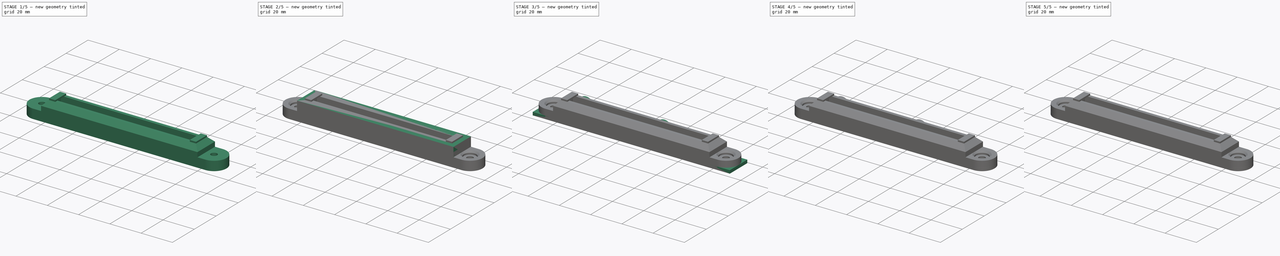
[diagram: build sequence overview — one tinted view per stage of 5, left to right]
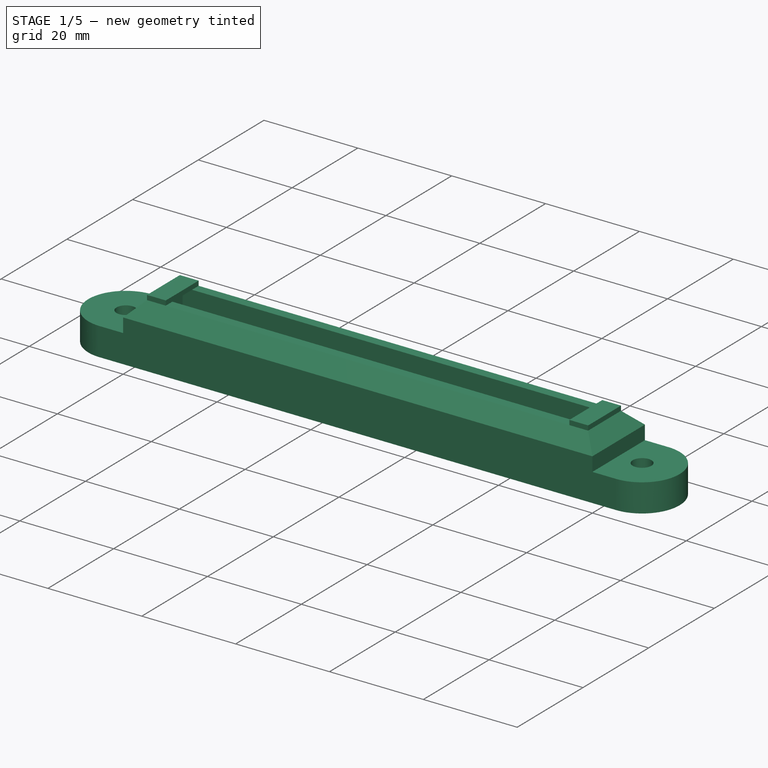
[diagram: stage 1 of 5 — iso view after this stage's code; geometry added in this stage tinted green]
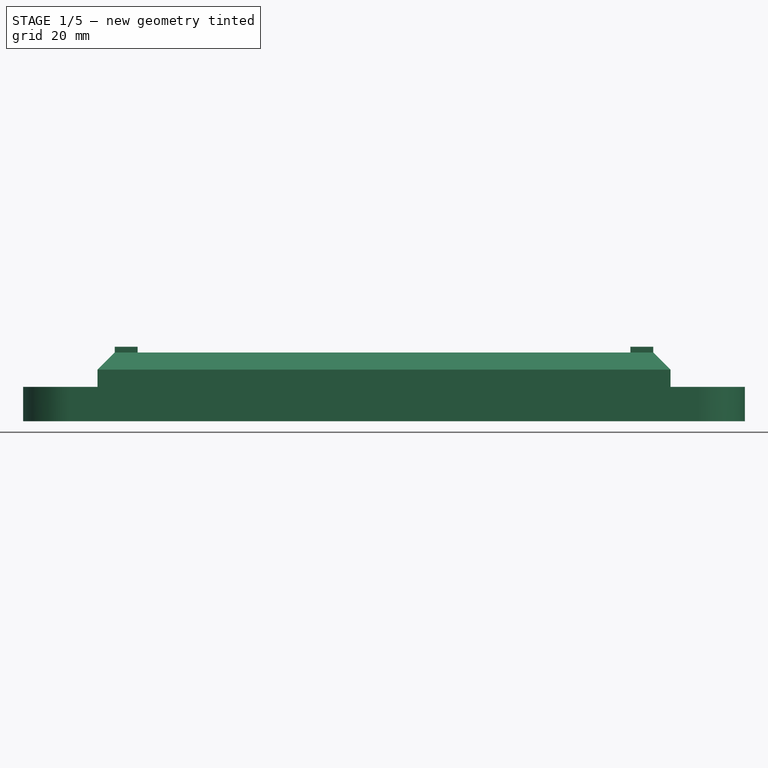
[diagram: stage 1 of 5 — front view after this stage's code; geometry added in this stage tinted green]
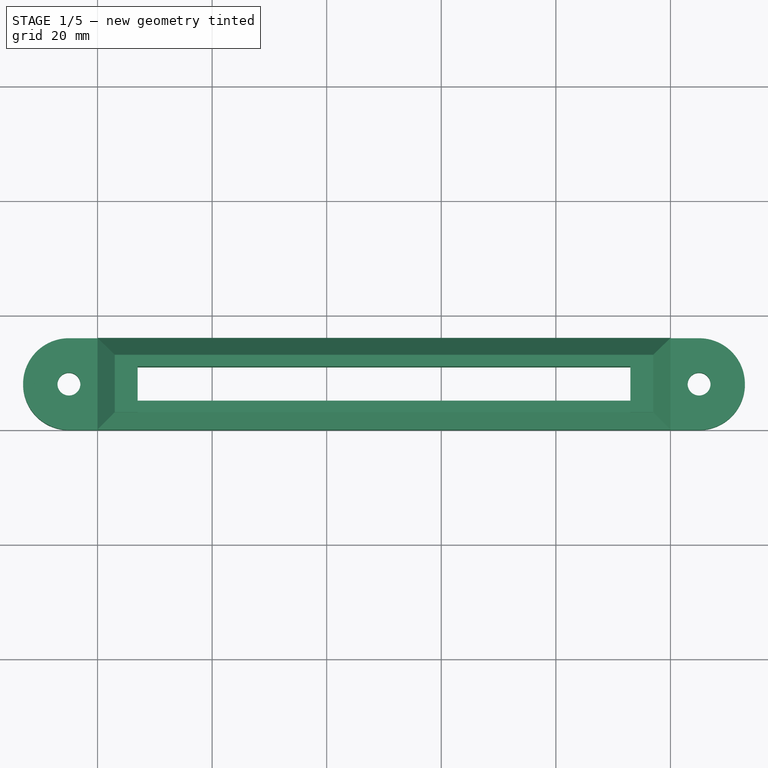
[diagram: stage 1 of 5 — top view after this stage's code; geometry added in this stage tinted green]
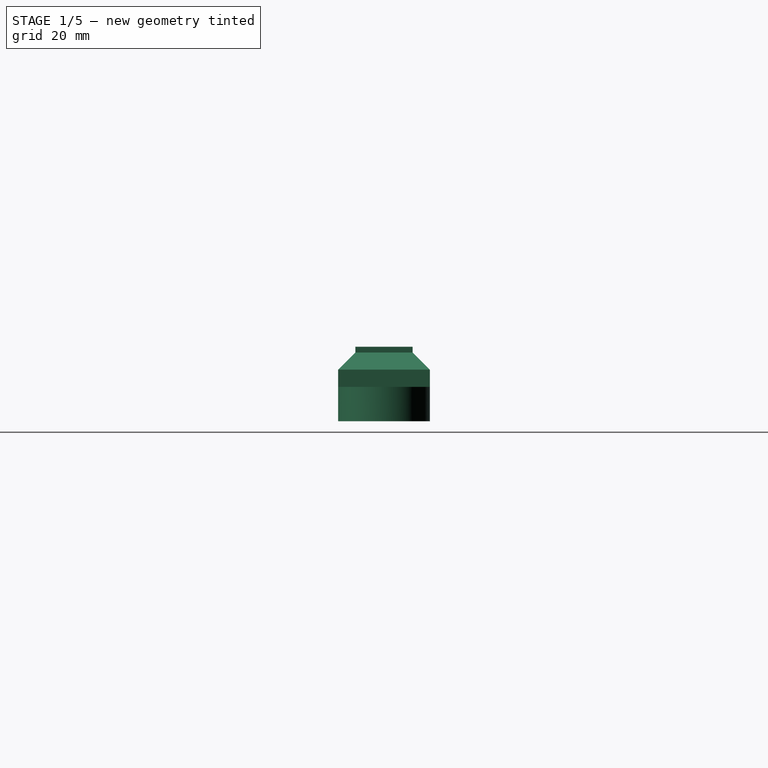
[diagram: stage 1 of 5 — right view after this stage's code; geometry added in this stage tinted green]
FCSTD DOCUMENT  (FreeCAD 0.16R5861 (Git))
Label: wiper_mount_v1.1
License: CC-BY 3.0
LicenseURL: http://creativecommons.org/licenses/by/3.0/
objects: Sketcher::SketchObject×14, PartDesign::Pad×7, PartDesign::Pocket×7, PartDesign::Chamfer×3, PartDesign::Fillet×2, Part::Feature×2, PartDesign::LinearPattern×1
note: 50 computed .brp shape members not serialized (recipe doc carries the construction recipe); baked Part::Feature solids carry a one-line shape summary decoded from their .brp

FEATURE [Part::Feature] Pocket004001  label="Pocket005"
  shape: bbox 126 x 16 x 13 mm, 37 faces (baked)
FEATURE [Sketcher::SketchObject] Sketch011
  ExternalGeometry = -> [Pocket004001]
  Placement = pos=(0,0,2) rot=(0,0,1;0rad)
  Support = -> Pocket004001 [Face33]
  sketch-geometry (8):
    g0: LineSegment StartX=0 StartY=16 StartZ=0 EndX=-13 EndY=16 EndZ=0
    g1: LineSegment StartX=-13 StartY=16 StartZ=0 EndX=-13 EndY=0 EndZ=0
    g2: LineSegment StartX=-13 StartY=0 StartZ=0 EndX=0 EndY=0 EndZ=0
    g3: LineSegment StartX=0 StartY=0 StartZ=0 EndX=0 EndY=16 EndZ=0
    g4: LineSegment StartX=100 StartY=16 StartZ=0 EndX=113 EndY=16 EndZ=0
    g5: LineSegment StartX=113 StartY=16 StartZ=0 EndX=113 EndY=0 EndZ=0
    g6: LineSegment StartX=113 StartY=0 StartZ=0 EndX=100 EndY=0 EndZ=0
    g7: LineSegment StartX=100 StartY=0 StartZ=0 EndX=100 EndY=16 EndZ=0
  constraints (22):
    c: Coincident(g0,g1)
    c: Coincident(g1,g2)
    c: Coincident(g2,g3)
    c: Coincident(g3,g0)
    c: Horizontal(g0)
    c: Horizontal(g2)
    c: Vertical(g1)
    c: Vertical(g3)
    c: Coincident(g0,g-9)
    c: PointOnObject(g1,g-1)
    c: PointOnObject(g-5,g1)
    c: Coincident(g4,g5)
    c: Coincident(g5,g6)
    c: Coincident(g6,g7)
    c: Coincident(g7,g4)
    c: Horizontal(g4)
    c: Horizontal(g6)
    c: Vertical(g5)
    c: Vertical(g7)
    c: Coincident(g4,g-8)
    c: PointOnObject(g5,g-1)
    c: PointOnObject(g-6,g5)
FEATURE [PartDesign::Pad] Pad006
  Length = 4
  Length2 = 100
  Sketch = -> Sketch011
  Type = 0
FEATURE [PartDesign::Fillet] Fillet001
  Base = -> Pad006 [Edge71,Edge84,Edge68,Edge91]
  Radius = 7.99
FEATURE [Sketcher::SketchObject] Sketch012
  ExternalGeometry = -> [Fillet001]
  Placement = pos=(0,0,0) rot=(1,0,0;3.14159rad)
  Support = -> Fillet001 [Face1]
  sketch-geometry (2):
    g0: Circle CenterX=-5 CenterY=-8 CenterZ=0 NormalX=0 NormalY=0 NormalZ=1 Radius=2
    g1: Circle CenterX=105 CenterY=-8 CenterZ=0 NormalX=0 NormalY=0 NormalZ=1 Radius=2
  constraints (4):
    c: Coincident(g0,g-4)
    c: Coincident(g1,g-3)
    c: Equal(g1,g0)
    c: Radius(g0) = 2
FEATURE [PartDesign::Pocket] Pocket004002
  Length = 5
  Sketch = -> Sketch012
  Type = 1
FEATURE [Part::Feature] Chamfer001001  label="Chamfer002"
  shape: bbox 126 x 16 x 13.02 mm, 47 faces (baked)
FEATURE [PartDesign::Chamfer] Chamfer001002
  Base = -> Chamfer001001 [Edge84,Edge6]
  Size = 2
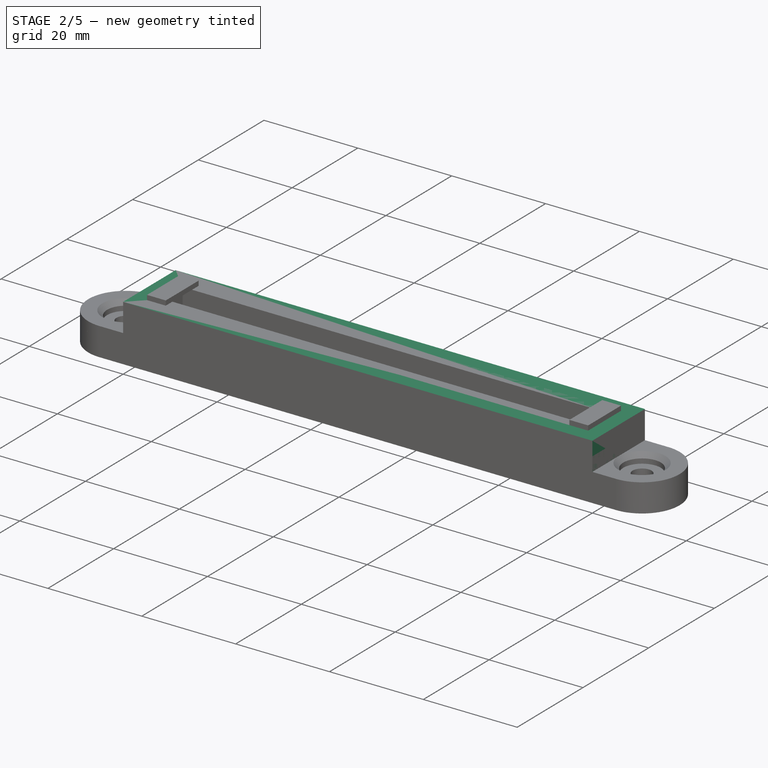
[diagram: stage 2 of 5 — iso view after this stage's code; geometry added in this stage tinted green]
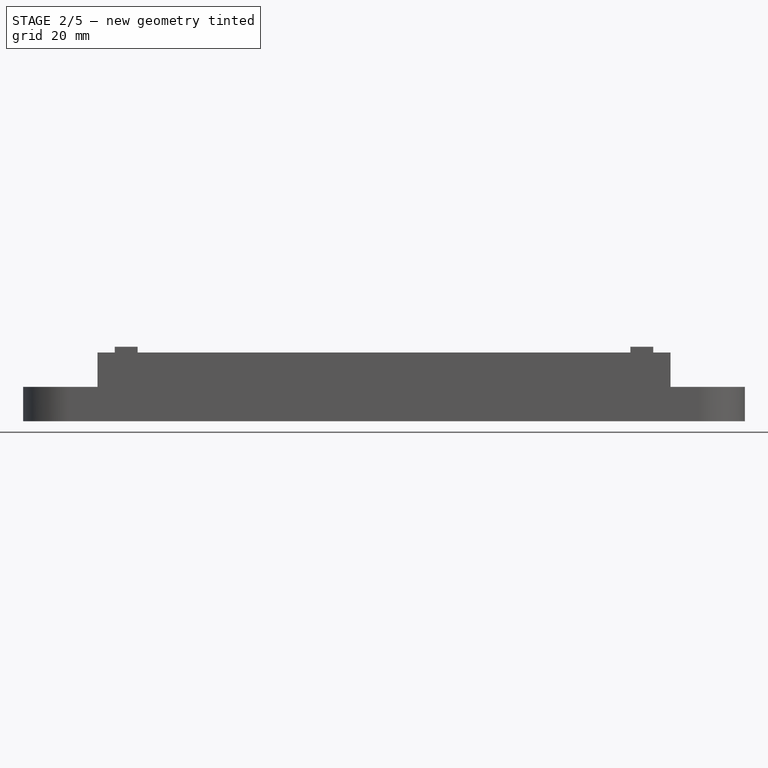
[diagram: stage 2 of 5 — front view after this stage's code; geometry added in this stage tinted green]
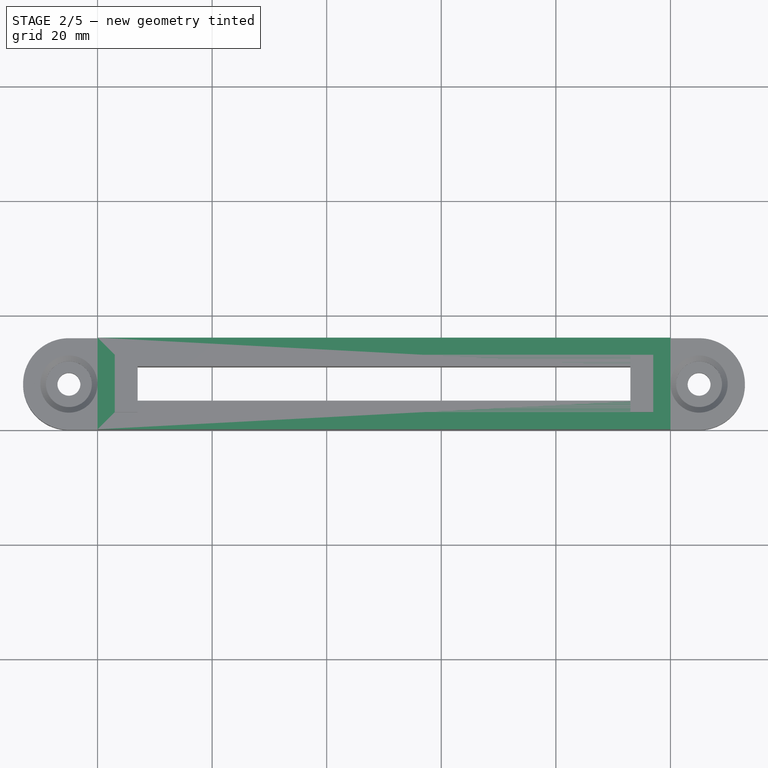
[diagram: stage 2 of 5 — top view after this stage's code; geometry added in this stage tinted green]
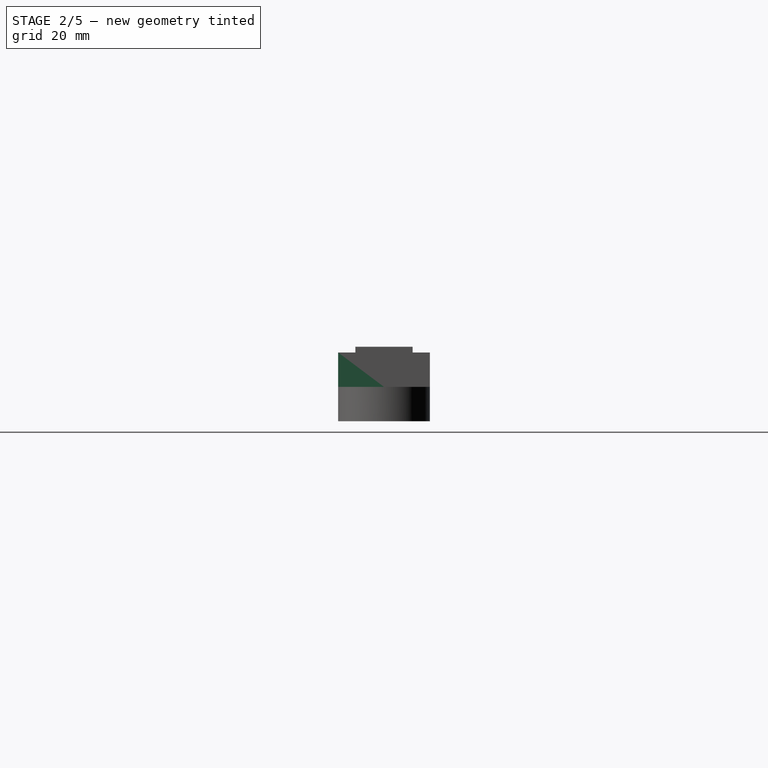
[diagram: stage 2 of 5 — right view after this stage's code; geometry added in this stage tinted green]
FEATURE [Sketcher::SketchObject] Sketch
  sketch-geometry (4):
    g0: LineSegment StartX=0 StartY=0 StartZ=0 EndX=100 EndY=0 EndZ=0
    g1: LineSegment StartX=100 StartY=0 StartZ=0 EndX=100 EndY=16 EndZ=0
    g2: LineSegment StartX=100 StartY=16 StartZ=0 EndX=0 EndY=16 EndZ=0
    g3: LineSegment StartX=0 StartY=16 StartZ=0 EndX=0 EndY=0 EndZ=0
  constraints (11):
    c: Coincident(g0,g1)
    c: Coincident(g1,g2)
    c: Coincident(g2,g3)
    c: Coincident(g3,g0)
    c: Horizontal(g0)
    c: Horizontal(g2)
    c: Vertical(g1)
    c: Vertical(g3)
    c: Coincident(g0,g-1)
    c: DistanceY(g3) = -16
    c: DistanceX(g2) = -100
FEATURE [PartDesign::Pad] Pad
  Length = 12
  Length2 = 100
  Sketch = -> Sketch
  Type = 0
FEATURE [Sketcher::SketchObject] Sketch001
  Placement = pos=(0,0,12) rot=(0,0,1;0rad)
  Support = -> Pad [Face6]
  sketch-geometry (4):
    g0: LineSegment StartX=5 StartY=5 StartZ=0 EndX=95 EndY=5 EndZ=0
    g1: LineSegment StartX=95 StartY=5 StartZ=0 EndX=95 EndY=11 EndZ=0
    g2: LineSegment StartX=95 StartY=11 StartZ=0 EndX=5 EndY=11 EndZ=0
    g3: LineSegment StartX=5 StartY=11 StartZ=0 EndX=5 EndY=5 EndZ=0
  constraints (12):
    c: Coincident(g0,g1)
    c: Coincident(g1,g2)
    c: Coincident(g2,g3)
    c: Coincident(g3,g0)
    c: Horizontal(g0)
    c: Horizontal(g2)
    c: Vertical(g1)
    c: Vertical(g3)
    c: DistanceY(g3) = -6
    c: DistanceX(g0) = 5
    c: DistanceY(g0) = 5
    c: DistanceX(g2) = -90
FEATURE [PartDesign::Pocket] Pocket
  Length = 5
  Sketch = -> Sketch001
  Type = 1
FEATURE [Sketcher::SketchObject] Sketch013
  ExternalGeometry = -> [Pocket004002]
  Placement = pos=(0,0,6) rot=(0,0,1;0rad)
  Support = -> Pocket004002 [Face35]
  sketch-geometry (2):
    g0: Circle CenterX=-5 CenterY=8 CenterZ=0 NormalX=0 NormalY=0 NormalZ=1 Radius=4
    g1: Circle CenterX=105 CenterY=8 CenterZ=0 NormalX=0 NormalY=0 NormalZ=1 Radius=4
  constraints (4):
    c: Coincident(g0,g-3)
    c: Coincident(g1,g-4)
    c: Equal(g1,g0)
    c: Radius(g0) = 4
FEATURE [PartDesign::Pocket] Pocket004003
  Length = 2
  Sketch = -> Sketch013
  Type = 0
FEATURE [PartDesign::Chamfer] Chamfer001
  Base = -> Pocket004003 [Edge100,Edge99]
  Size = 0.99
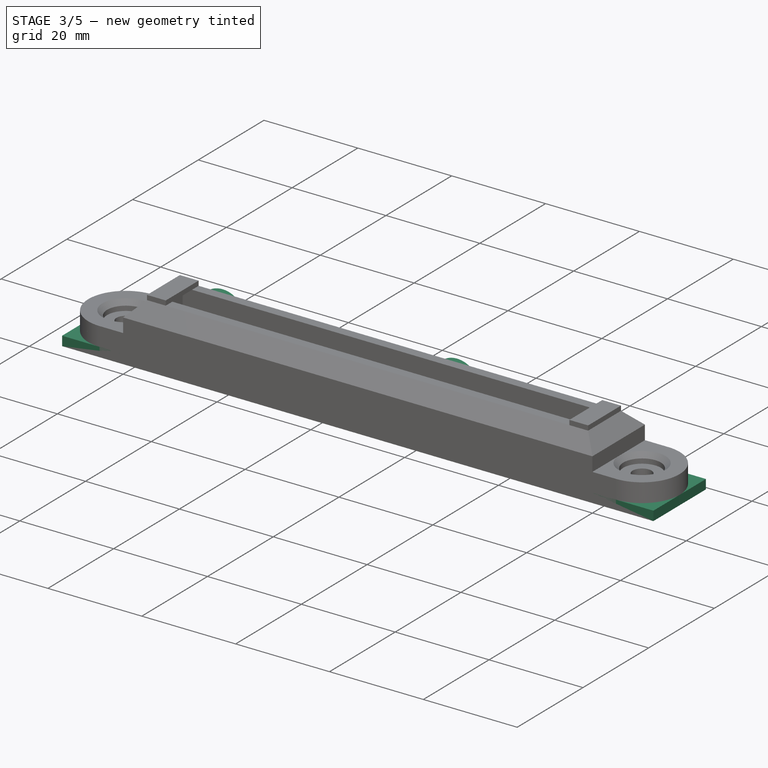
[diagram: stage 3 of 5 — iso view after this stage's code; geometry added in this stage tinted green]
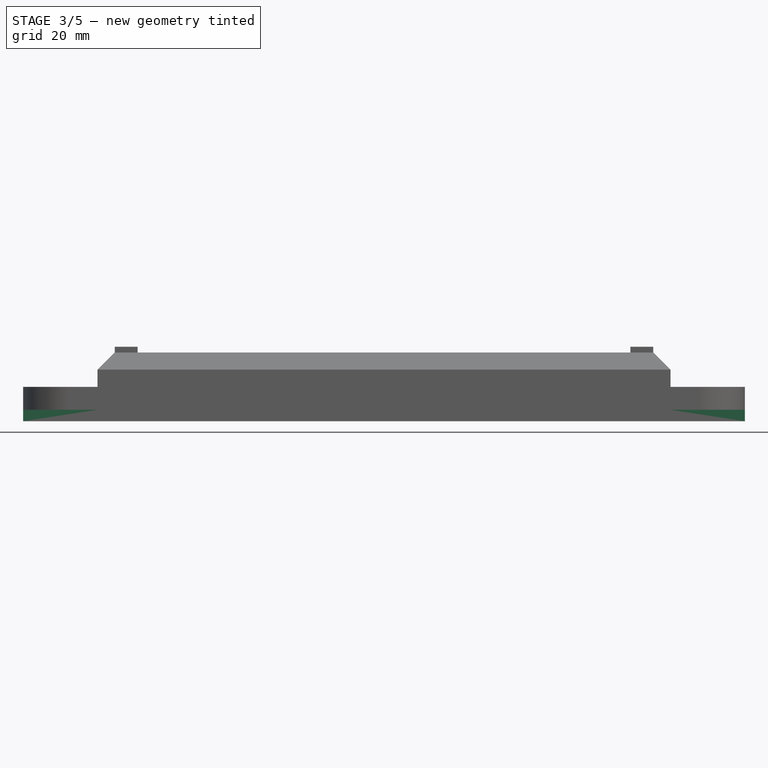
[diagram: stage 3 of 5 — front view after this stage's code; geometry added in this stage tinted green]
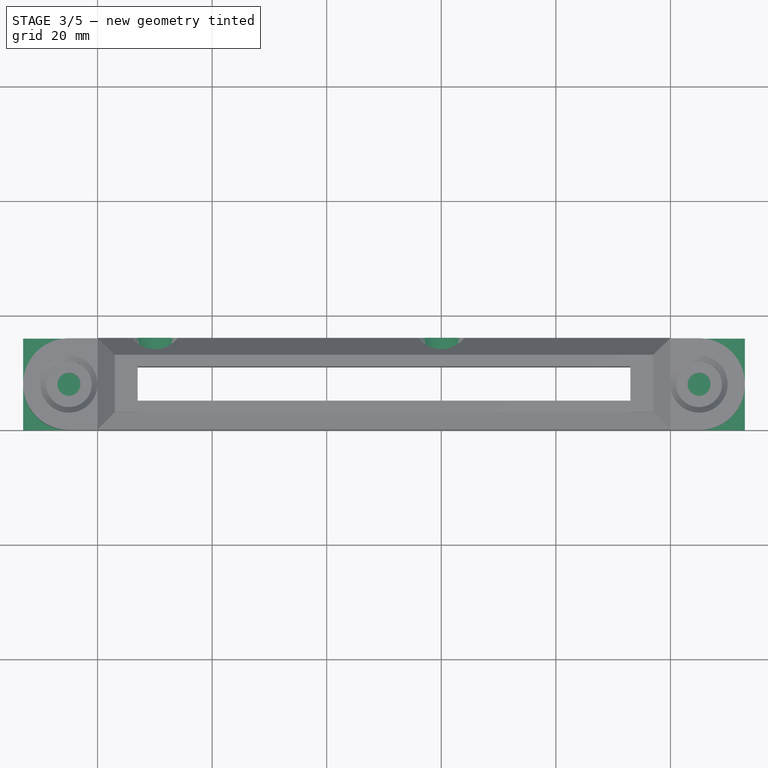
[diagram: stage 3 of 5 — top view after this stage's code; geometry added in this stage tinted green]
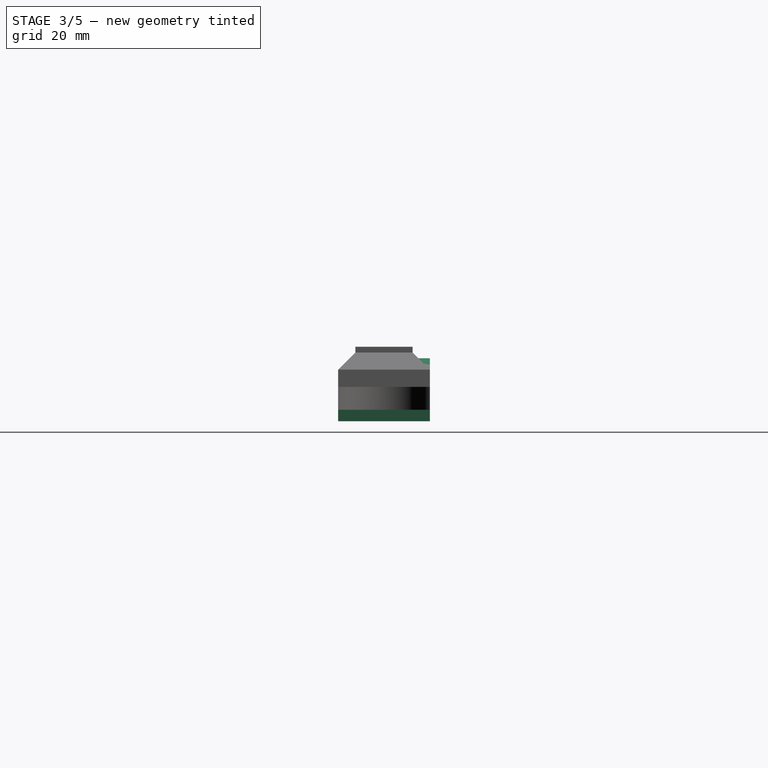
[diagram: stage 3 of 5 — right view after this stage's code; geometry added in this stage tinted green]
FEATURE [Sketcher::SketchObject] Sketch002
  Placement = pos=(0,16,0) rot=(0,0.707107,0.707107;3.14159rad)
  Support = -> Pocket [Face6]
  sketch-geometry (2):
    g0: Circle CenterX=-60 CenterY=6 CenterZ=0 NormalX=0 NormalY=0 NormalZ=1 Radius=2.65
    g1: Circle CenterX=-10 CenterY=6 CenterZ=0 NormalX=0 NormalY=0 NormalZ=1 Radius=2.65
  constraints (6):
    c: DistanceX(g1) = -10
    c: DistanceY(g1) = 6
    c: DistanceX(g0) = -60
    c: DistanceY(g0) = 6
    c: Equal(g0,g1)
    c: Radius(g0) = 2.65
FEATURE [PartDesign::Pocket] Pocket001
  Length = 5
  Sketch = -> Sketch002
  Type = 0
FEATURE [PartDesign::Chamfer] Chamfer
  Base = -> Pocket001 [Edge16,Edge10,Edge4,Edge7]
  Size = 3
FEATURE [Sketcher::SketchObject] Sketch003
  ExternalGeometry = -> [Chamfer]
  Placement = pos=(0,16,0) rot=(0,0.707107,0.707107;3.14159rad)
  Support = -> Chamfer [Face6]
  sketch-geometry (4):
    g0: Circle CenterX=-60 CenterY=6 CenterZ=0 NormalX=0 NormalY=0 NormalZ=1 Radius=2.6
    g1: Circle CenterX=-10 CenterY=6 CenterZ=0 NormalX=0 NormalY=0 NormalZ=1 Radius=2.6
    g2: Circle CenterX=-60 CenterY=6 CenterZ=0 NormalX=0 NormalY=0 NormalZ=1 Radius=5
    g3: Circle CenterX=-10 CenterY=6 CenterZ=0 NormalX=0 NormalY=0 NormalZ=1 Radius=5
  constraints (8):
    c: Coincident(g0,g-3)
    c: Coincident(g1,g-4)
    c: Coincident(g2,g0)
    c: Coincident(g3,g1)
    c: Equal(g1,g0)
    c: Radius(g0) = 2.6
    c: Equal(g2,g3)
    c: Radius(g2) = 5
FEATURE [PartDesign::Pad] Pad001
  Length = 3
  Length2 = 100
  Reversed = true
  Sketch = -> Sketch003
  Type = 0
FEATURE [Sketcher::SketchObject] Sketch004
  ExternalGeometry = -> [Pad001]
  Placement = pos=(0,0,0) rot=(1,0,0;3.14159rad)
  Support = -> Pad001 [Face4]
  sketch-geometry (8):
    g0: LineSegment StartX=2 StartY=0 StartZ=0 EndX=-13 EndY=0 EndZ=0
    g1: LineSegment StartX=-13 StartY=0 StartZ=0 EndX=-13 EndY=-16 EndZ=0
    g2: LineSegment StartX=-13 StartY=-16 StartZ=0 EndX=2 EndY=-16 EndZ=0
    g3: LineSegment StartX=2 StartY=-16 StartZ=0 EndX=2 EndY=0 EndZ=0
    g4: LineSegment StartX=98 StartY=0 StartZ=0 EndX=113 EndY=0 EndZ=0
    g5: LineSegment StartX=113 StartY=0 StartZ=0 EndX=113 EndY=-16 EndZ=0
    g6: LineSegment StartX=113 StartY=-16 StartZ=0 EndX=98 EndY=-16 EndZ=0
    g7: LineSegment StartX=98 StartY=-16 StartZ=0 EndX=98 EndY=0 EndZ=0
  constraints (24):
    c: Coincident(g0,g1)
    c: Coincident(g1,g2)
    c: Coincident(g2,g3)
    c: Coincident(g3,g0)
    c: Horizontal(g0)
    c: Horizontal(g2)
    c: Vertical(g1)
    c: Vertical(g3)
    c: PointOnObject(g0,g-1)
    c: Coincident(g4,g5)
    c: Coincident(g5,g6)
    c: Coincident(g6,g7)
    c: Coincident(g7,g4)
    c: Horizontal(g4)
    c: Horizontal(g6)
    c: Vertical(g5)
    c: Vertical(g7)
    c: Equal(g0,g4)
    c: Equal(g3,g7)
    c: DistanceX(g-1,g0) = 2
    c: PointOnObject(g-3,g4)
    c: DistanceX(g4,g-3) = 2
    c: DistanceY(g3) = 16
    c: DistanceX(g0) = -15
FEATURE [PartDesign::Pad] Pad002
  Length = 2
  Length2 = 100
  Reversed = true
  Sketch = -> Sketch004
  Type = 0
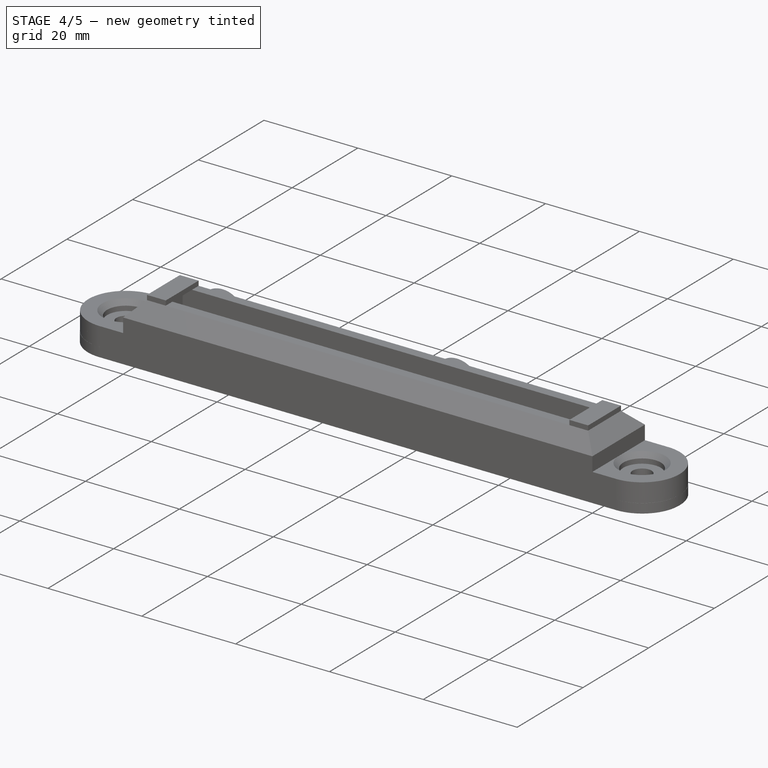
[diagram: stage 4 of 5 — iso view after this stage's code; geometry added in this stage tinted green]
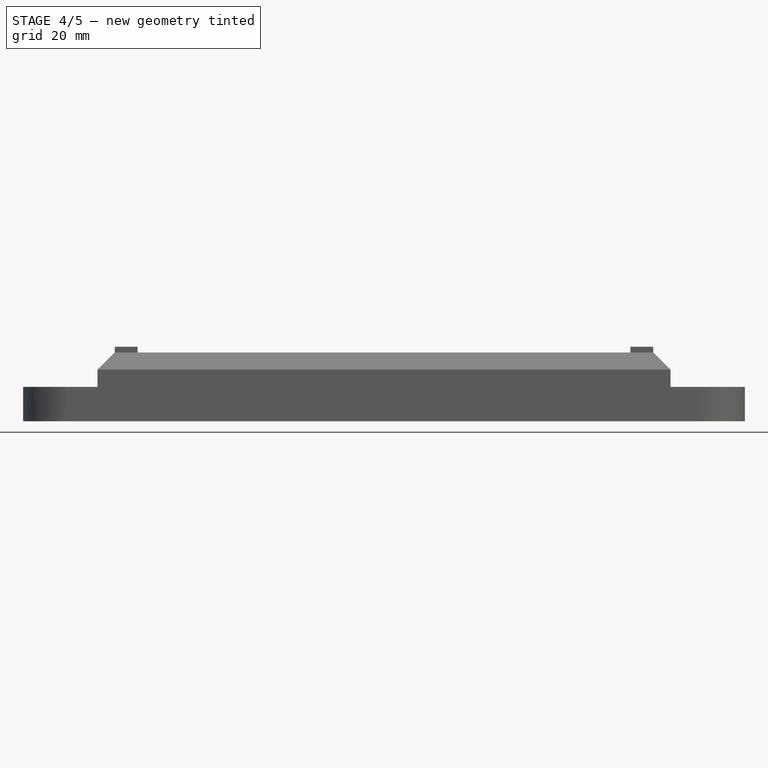
[diagram: stage 4 of 5 — front view after this stage's code; geometry added in this stage tinted green]
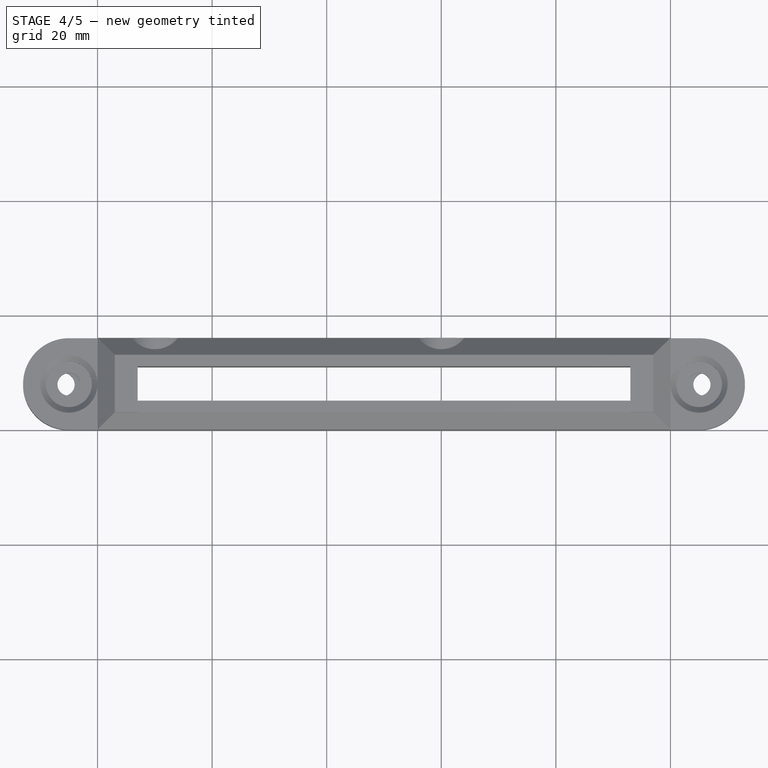
[diagram: stage 4 of 5 — top view after this stage's code; geometry added in this stage tinted green]
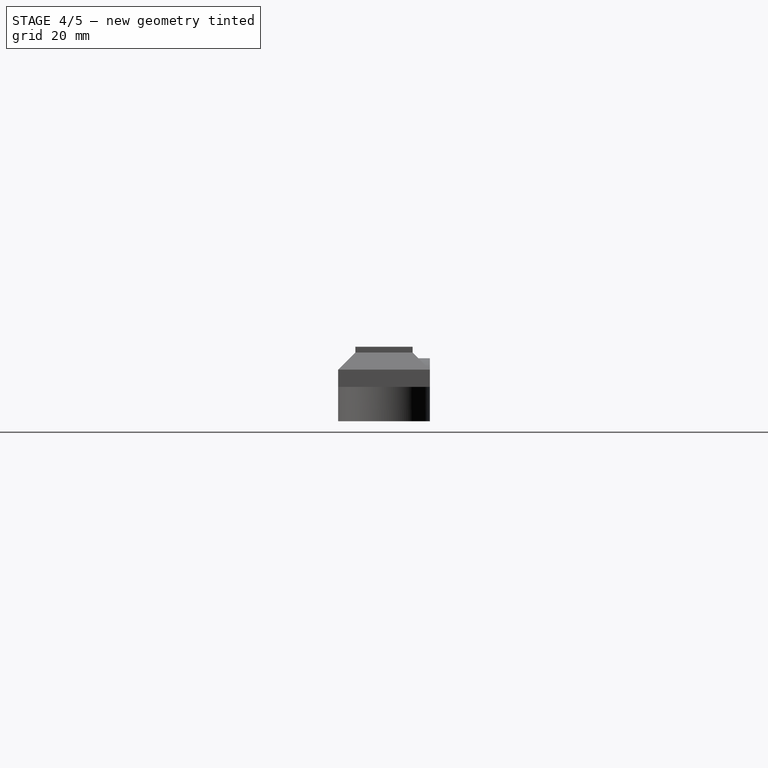
[diagram: stage 4 of 5 — right view after this stage's code; geometry added in this stage tinted green]
FEATURE [PartDesign::Fillet] Fillet
  Base = -> Pad002 [Edge65,Edge85,Edge69,Edge90]
  Radius = 7.9
FEATURE [Sketcher::SketchObject] Sketch005
  Placement = pos=(0,0,2) rot=(0,0,1;0rad)
  Support = -> Fillet [Face31]
  sketch-geometry (2):
    g0: Circle CenterX=-6 CenterY=8 CenterZ=0 NormalX=0 NormalY=0 NormalZ=1 Radius=2
    g1: Circle CenterX=106 CenterY=8 CenterZ=0 NormalX=0 NormalY=0 NormalZ=1 Radius=2
  constraints (6):
    c: Equal(g1,g0)
    c: DistanceX(g0) = -6
    c: DistanceY(g0) = 8
    c: DistanceX(g1) = 106
    c: DistanceY(g1) = 8
    c: Radius(g0) = 2
FEATURE [PartDesign::Pocket] Pocket002
  Length = 5
  Sketch = -> Sketch005
  Type = 0
FEATURE [Sketcher::SketchObject] Sketch006
  ExternalGeometry = -> [Pocket002]
  Placement = pos=(0,0,12) rot=(0,0,1;0rad)
  Support = -> Pocket002 [Face28]
  sketch-geometry (4):
    g0: LineSegment StartX=3 StartY=3 StartZ=0 EndX=7 EndY=3 EndZ=0
    g1: LineSegment StartX=7 StartY=3 StartZ=0 EndX=7 EndY=13 EndZ=0
    g2: LineSegment StartX=7 StartY=13 StartZ=0 EndX=3 EndY=13 EndZ=0
    g3: LineSegment StartX=3 StartY=13 StartZ=0 EndX=3 EndY=3 EndZ=0
  constraints (11):
    c: Coincident(g0,g1)
    c: Coincident(g1,g2)
    c: Coincident(g2,g3)
    c: Coincident(g3,g0)
    c: Horizontal(g0)
    c: Horizontal(g2)
    c: Vertical(g1)
    c: Vertical(g3)
    c: Coincident(g2,g-3)
    c: Coincident(g0,g-3)
    c: DistanceX(g-1,g0) = 7
FEATURE [PartDesign::Pad] Pad003
  Length = 1
  Length2 = 100
  Sketch = -> Sketch006
  Type = 0
FEATURE [PartDesign::LinearPattern] LinearPattern
  Direction = -> Sketch006 [H_Axis]
  Length = 90
  Occurrences = 2
  Originals = -> [Pad003]
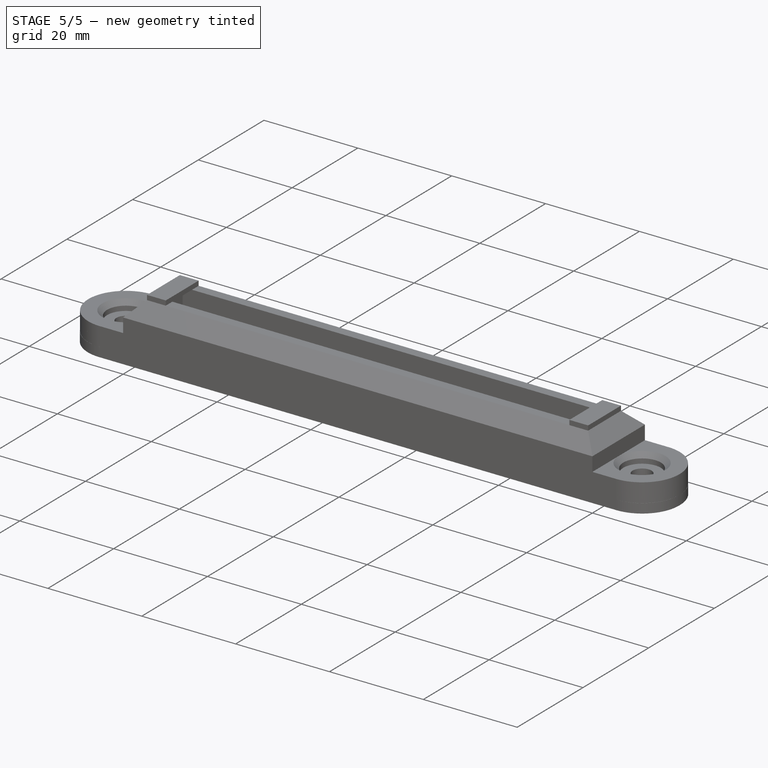
[diagram: stage 5 of 5 — iso view after this stage's code; geometry added in this stage tinted green]
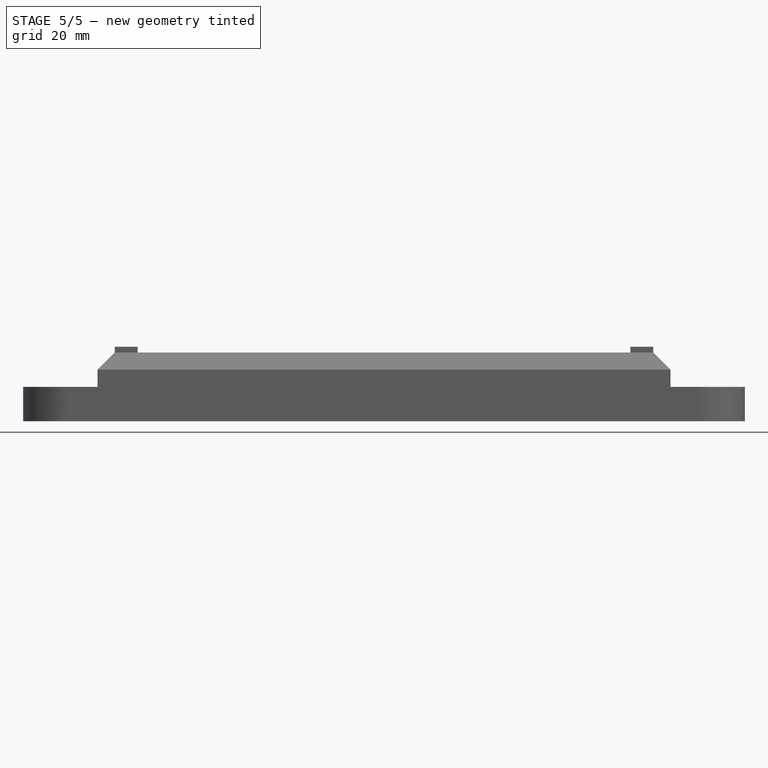
[diagram: stage 5 of 5 — front view after this stage's code; geometry added in this stage tinted green]
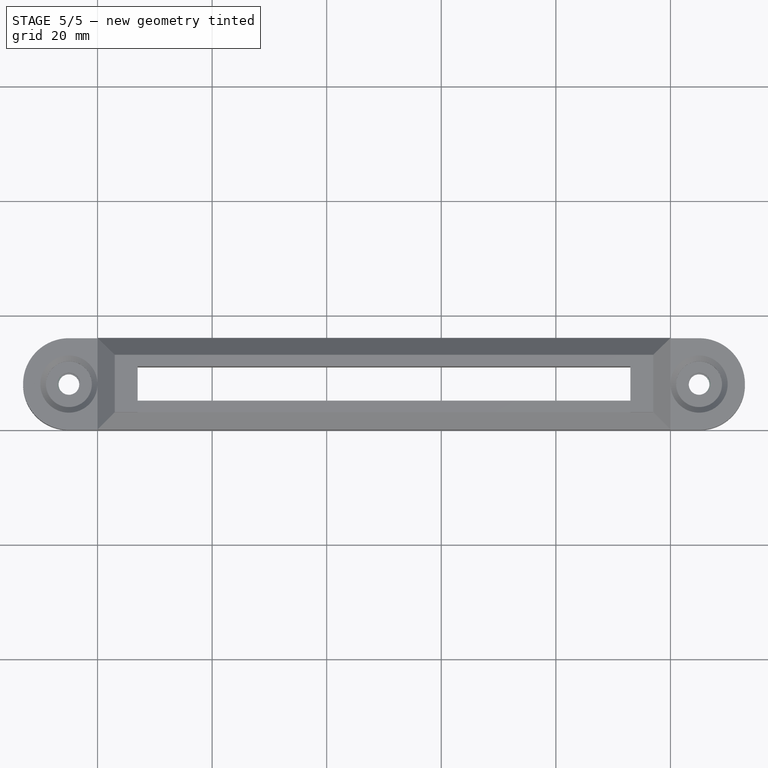
[diagram: stage 5 of 5 — top view after this stage's code; geometry added in this stage tinted green]
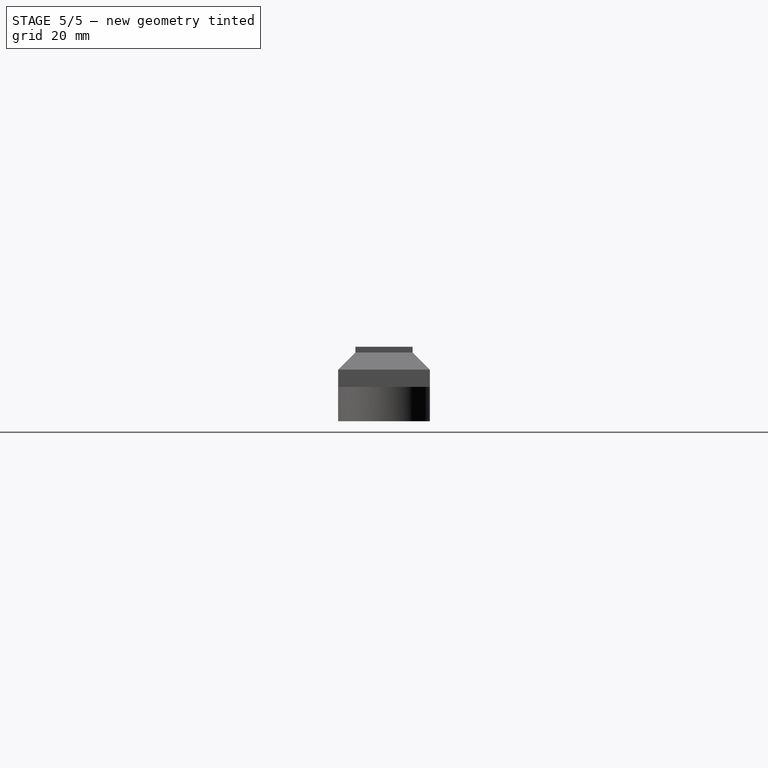
[diagram: stage 5 of 5 — right view after this stage's code; geometry added in this stage tinted green]
FEATURE [Sketcher::SketchObject] Sketch007
  ExternalGeometry = -> [LinearPattern]
  Placement = pos=(0,16,0) rot=(0,0.707107,0.707107;3.14159rad)
  Support = -> LinearPattern [Face19]
  sketch-geometry (2):
    g0: Circle CenterX=-60 CenterY=6 CenterZ=0 NormalX=0 NormalY=0 NormalZ=1 Radius=2.9
    g1: Circle CenterX=-10 CenterY=6 CenterZ=0 NormalX=0 NormalY=0 NormalZ=1 Radius=2.9
  constraints (4):
    c: Coincident(g1,g-4)
    c: Coincident(g0,g-3)
    c: Radius(g0) = 2.9
    c: Radius(g1) = 2.9
FEATURE [PartDesign::Pad] Pad004
  Length = 5
  Length2 = 100
  Reversed = true
  Sketch = -> Sketch007
  Type = 0
FEATURE [Sketcher::SketchObject] Sketch008
  ExternalGeometry = -> [Pad004]
  Placement = pos=(0,0,0) rot=(0.57735,-0.57735,-0.57735;2.0944rad)
  Support = -> Pad004 [Face12]
  sketch-geometry (3):
    g0: LineSegment StartX=-16 StartY=12 StartZ=0 EndX=-13 EndY=12 EndZ=0
    g1: LineSegment StartX=-16 StartY=9 StartZ=0 EndX=-13 EndY=12 EndZ=0
    g2: LineSegment StartX=-16 StartY=9 StartZ=0 EndX=-16 EndY=12 EndZ=0
  constraints (7):
    c: Coincident(g1,g0)
    c: Coincident(g2,g0)
    c: Coincident(g2,g1)
    c: Coincident(g1,g-3)
    c: Coincident(g0,g-3)
    c: DistanceY(g0,g1) = -3
    c: DistanceX(g0,g0) = 3
FEATURE [PartDesign::Pocket] Pocket003
  Length = 100
  Sketch = -> Sketch008
  Type = 0
FEATURE [Sketcher::SketchObject] Sketch009
  ExternalGeometry = -> [Pocket003]
  Placement = pos=(0,0,2) rot=(0,0,1;0rad)
  Support = -> Pocket003 [Face26]
  sketch-geometry (2):
    g0: Circle CenterX=-6 CenterY=8 CenterZ=0 NormalX=0 NormalY=0 NormalZ=1 Radius=3
    g1: Circle CenterX=106 CenterY=8 CenterZ=0 NormalX=0 NormalY=0 NormalZ=1 Radius=3
  constraints (4):
    c: Coincident(g0,g-3)
    c: Coincident(g1,g-4)
    c: Equal(g0,g1)
    c: Radius(g0) = 3
FEATURE [PartDesign::Pad] Pad005
  Length = 2
  Length2 = 100
  Reversed = true
  Sketch = -> Sketch009
  Type = 0
FEATURE [Sketcher::SketchObject] Sketch010
  Placement = pos=(0,0,2) rot=(0,0,1;0rad)
  Support = -> Pad005 [Face5]
  sketch-geometry (3):
    g0: Circle CenterX=-5 CenterY=8 CenterZ=0 NormalX=0 NormalY=0 NormalZ=1 Radius=1.8
    g1: Circle CenterX=105 CenterY=8 CenterZ=0 NormalX=0 NormalY=0 NormalZ=1 Radius=1.8
    g2: LineSegment [constr] StartX=-5 StartY=8 StartZ=0 EndX=105 EndY=8 EndZ=0
  constraints (8):
    c: Coincident(g2,g0)
    c: Coincident(g2,g1)
    c: Horizontal(g2)
    c: DistanceX(g2) = 110
    c: Equal(g0,g1)
    c: Radius(g0) = 1.8
    c: DistanceX(g-1,g0) = -5
    c: DistanceY(g-1,g0) = 8
FEATURE [PartDesign::Pocket] Pocket004
  Length = 5
  Sketch = -> Sketch010
  Type = 0
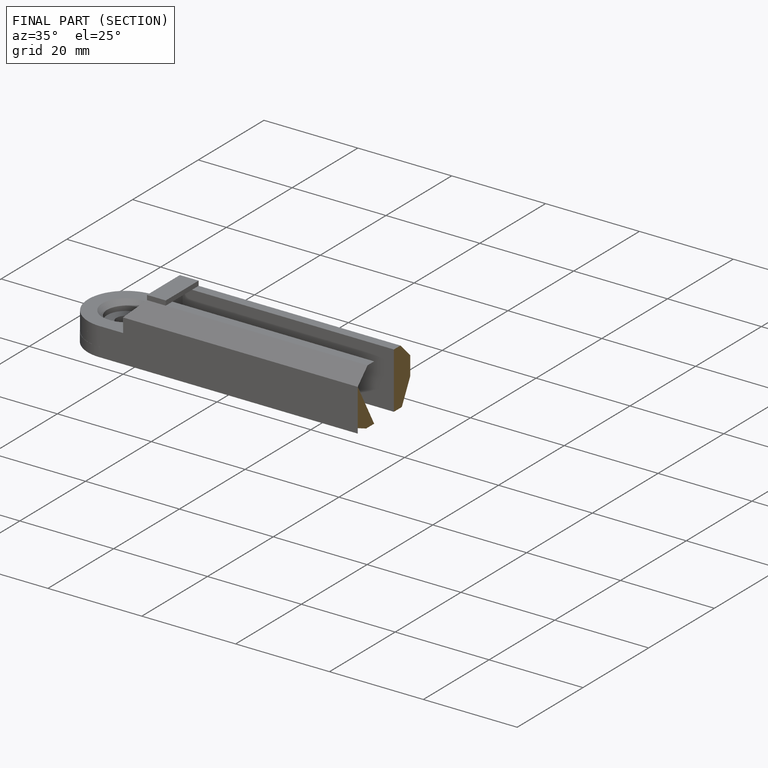
[diagram: finished part — half-section view (interior)]
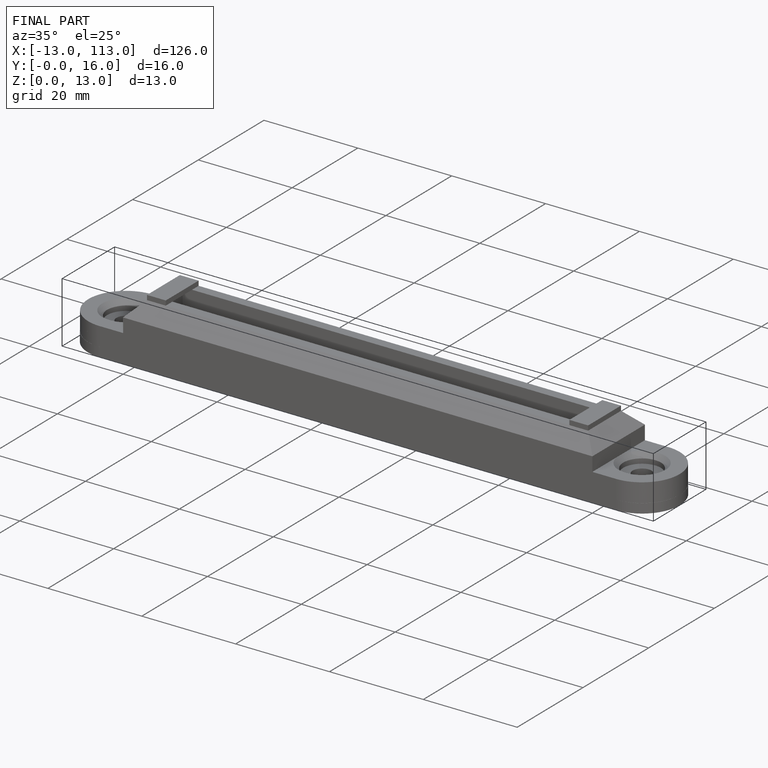
[diagram: finished part — iso view with bounding-box wireframe]
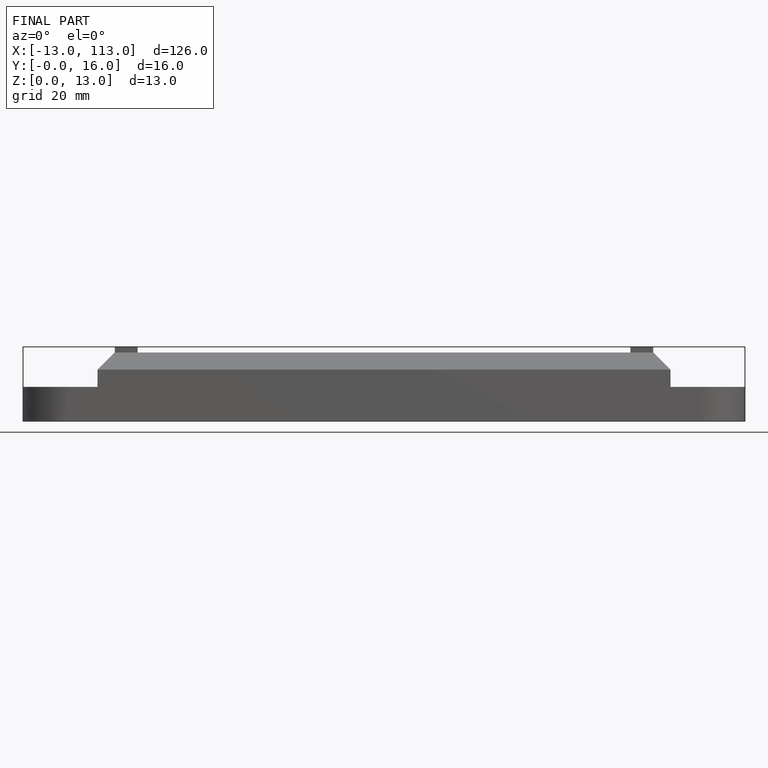
[diagram: finished part — front view with bounding-box wireframe]
